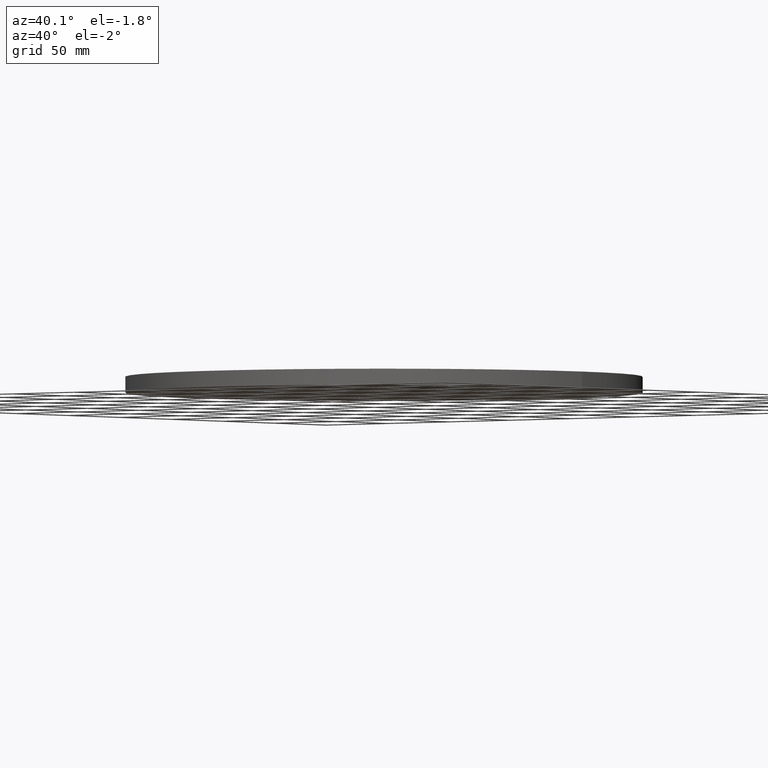
[diagram: clean part render]
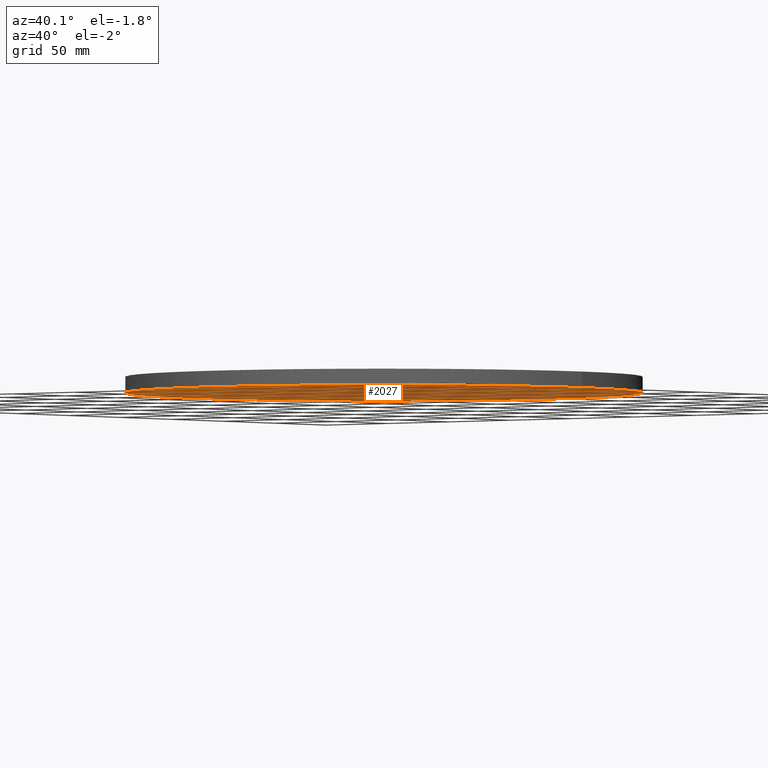
[diagram: same view with one face highlighted and labeled with its STEP entity id]
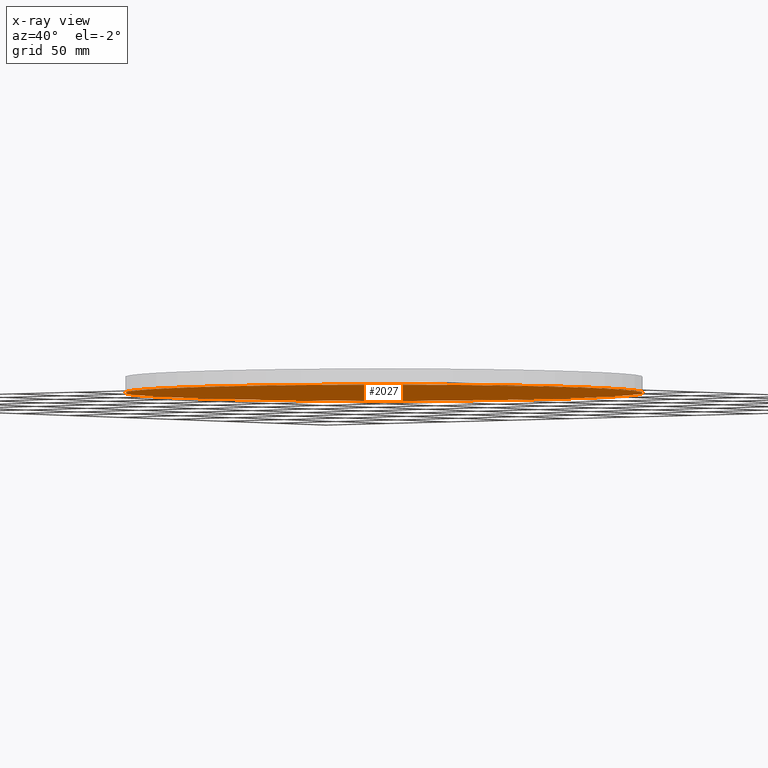
[diagram: x-ray of the same camera — body ghosted, the highlighted face saturated]
A machine part, auxiliary view. The second image highlights one B-rep face of the part: STEP entity #2027.
The next image is the same camera in x-ray: the body ghosted, the highlighted face saturated — about 0% of this face is hidden behind the body in this view.
In plain terms, the highlighted planar face has unit normal (0, 0, 1).
Its self-contained STEP definition (entity closure, byte-faithful):
#44 = CARTESIAN_POINT ( 'NONE',  ( 0.03975286221723135782, 1.019028807220643262, 1.313909608240514063E-14 ) ) ;
#90 = AXIS2_PLACEMENT_3D ( 'NONE', #1586, #1227, #2356 ) ;
#124 = AXIS2_PLACEMENT_3D ( 'NONE', #883, #2166, #446 ) ;
#191 = EDGE_LOOP ( 'NONE', ( #773, #1109 ) ) ;
#267 = CARTESIAN_POINT ( 'NONE',  ( 161.5000000000000000, 1.977804580622975483E-14, 0.000000000000000000 ) ) ;
#303 = CARTESIAN_POINT ( 'NONE',  ( 0.03975286221723135782, 1.019028807220643262, 1.313909608240514063E-14 ) ) ;
#343 = ORIENTED_EDGE ( 'NONE', *, *, #683, .F. ) ;
#368 = ORIENTED_EDGE ( 'NONE', *, *, #1233, .F. ) ;
#436 = EDGE_CURVE ( 'NONE', #2378, #1434, #806, .T. ) ;
#446 = DIRECTION ( 'NONE',  ( 1.000000000000000000, 0.000000000000000000, -0.000000000000000000 ) ) ;
#683 = EDGE_CURVE ( 'NONE', #1909, #959, #2079, .T. ) ;
#769 = CIRCLE ( 'NONE', #90, 161.5000000000000000 ) ;
#773 = ORIENTED_EDGE ( 'NONE', *, *, #1929, .F. ) ;
#806 =( BOUNDED_CURVE ( )  B_SPLINE_CURVE ( 1, ( #44, #816 ),
 .UNSPECIFIED., .F., .T. ) 
 B_SPLINE_CURVE_WITH_KNOTS ( ( 2, 2 ),
 ( 0.000000000000000000, 0.0003999999999999743778 ),
 .UNSPECIFIED. ) 
 CURVE ( )  GEOMETRIC_REPRESENTATION_ITEM ( )  RATIONAL_B_SPLINE_CURVE ( ( 0.9984588136654504176, 0.9984588136654504176 ) ) 
 REPRESENTATION_ITEM ( '' )  );
#816 = CARTESIAN_POINT ( 'NONE',  ( 0.4286291063622859054, 0.9253524135047483945, 1.313909608240514063E-14 ) ) ;
#883 = CARTESIAN_POINT ( 'NONE',  ( 0.000000000000000000, 0.000000000000000000, 0.000000000000000000 ) ) ;
#897 =( BOUNDED_CURVE ( )  B_SPLINE_CURVE ( 3, ( #2393, #1247, #2012, #303 ),
 .UNSPECIFIED., .F., .T. ) 
 B_SPLINE_CURVE_WITH_KNOTS ( ( 4, 4 ),
 ( 0.000000000000000000, 0.0006251630830733433206 ),
 .UNSPECIFIED. ) 
 CURVE ( )  GEOMETRIC_REPRESENTATION_ITEM ( )  RATIONAL_B_SPLINE_CURVE ( ( 0.9984588136654504176, 0.3328196045551544691, 0.3328196045551544691, 0.9984588136654504176 ) ) 
 REPRESENTATION_ITEM ( '' )  );
#959 = VERTEX_POINT ( 'NONE', #2187 ) ;
#1072 = PLANE ( 'NONE',  #124 ) ;
#1109 = ORIENTED_EDGE ( 'NONE', *, *, #436, .F. ) ;
#1171 = EDGE_LOOP ( 'NONE', ( #368, #343 ) ) ;
#1186 = DIRECTION ( 'NONE',  ( 1.000000000000000000, 0.000000000000000000, 0.000000000000000000 ) ) ;
#1227 = DIRECTION ( 'NONE',  ( 0.000000000000000000, 0.000000000000000000, 1.000000000000000000 ) ) ;
#1233 = EDGE_CURVE ( 'NONE', #959, #1909, #769, .T. ) ;
#1247 = CARTESIAN_POINT ( 'NONE',  ( 0.3349527126463895388, 0.5364761693596995507, 1.237898308590220215E-14 ) ) ;
#1291 = CARTESIAN_POINT ( 'NONE',  ( 0.4286291063622859054, 0.9253524135047483945, 1.313909608240514063E-14 ) ) ;
#1434 = VERTEX_POINT ( 'NONE', #1291 ) ;
#1586 = CARTESIAN_POINT ( 'NONE',  ( 0.000000000000000000, 0.000000000000000000, 0.000000000000000000 ) ) ;
#1634 = FACE_OUTER_BOUND ( 'NONE', #1171, .T. ) ;
#1894 = CARTESIAN_POINT ( 'NONE',  ( 0.03975286221723135782, 1.019028807220643262, 1.313909608240514063E-14 ) ) ;
#1909 = VERTEX_POINT ( 'NONE', #267 ) ;
#1929 = EDGE_CURVE ( 'NONE', #1434, #2378, #897, .T. ) ;
#1990 = DIRECTION ( 'NONE',  ( 0.000000000000000000, 0.000000000000000000, 1.000000000000000000 ) ) ;
#2012 = CARTESIAN_POINT ( 'NONE',  ( -0.05392353149866004752, 0.6301525630755934193, 1.237898308590220215E-14 ) ) ;
#2027 = ADVANCED_FACE ( 'NONE', ( #1634, #2403 ), #1072, .F. ) ;
#2038 = AXIS2_PLACEMENT_3D ( 'NONE', #2171, #1990, #1186 ) ;
#2079 = CIRCLE ( 'NONE', #2038, 161.5000000000000000 ) ;
#2166 = DIRECTION ( 'NONE',  ( 0.000000000000000000, 0.000000000000000000, 1.000000000000000000 ) ) ;
#2171 = CARTESIAN_POINT ( 'NONE',  ( 0.000000000000000000, 0.000000000000000000, 0.000000000000000000 ) ) ;
#2187 = CARTESIAN_POINT ( 'NONE',  ( -161.5000000000000000, 0.000000000000000000, 0.000000000000000000 ) ) ;
#2356 = DIRECTION ( 'NONE',  ( 1.000000000000000000, 0.000000000000000000, 0.000000000000000000 ) ) ;
#2378 = VERTEX_POINT ( 'NONE', #1894 ) ;
#2393 = CARTESIAN_POINT ( 'NONE',  ( 0.4286291063622859054, 0.9253524135047483945, 1.313909608240514063E-14 ) ) ;
#2403 = FACE_BOUND ( 'NONE', #191, .T. ) ;